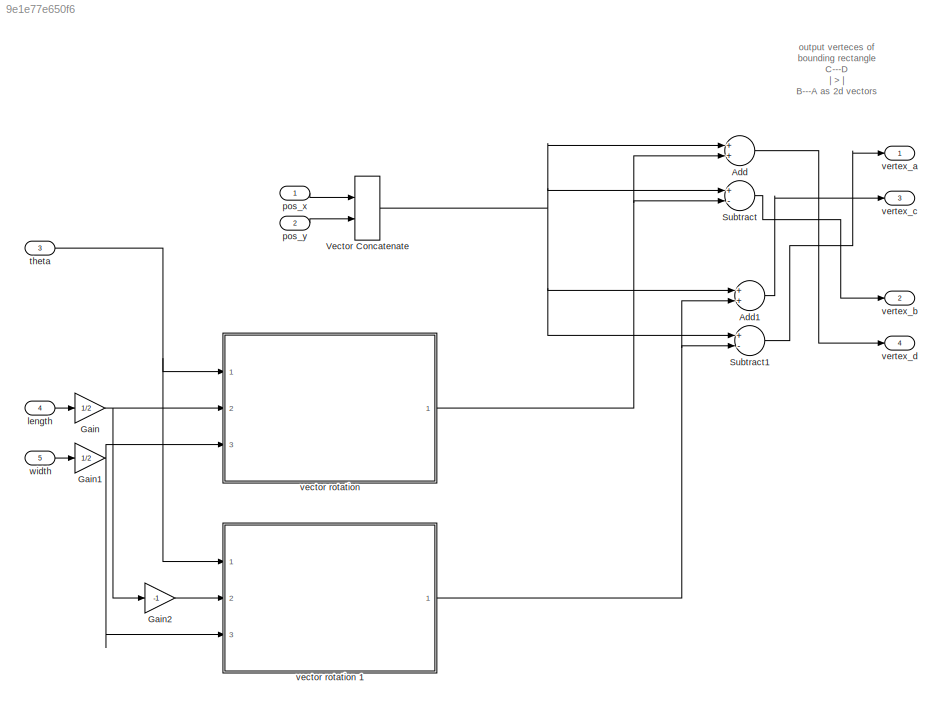
MODEL slx_9e1e77e650f6
KIND model
CONFIG AbsTol = auto
CONFIG EnableMultiTasking = off
CONFIG FixedStep = 0.01
CONFIG MaxStep = .001
CONFIG MinStep = auto
CONFIG RelTol = 1e-3
CONFIG SampleTimeConstraint = Unconstrained
CONFIG Solver = VariableStepAuto
CONFIG SolverName = VariableStepAuto
CONFIG StartTime = 0.0
CONFIG StopTime = 120
BLOCK [Sum] Add
  InputSameDT = off
  OutDataTypeStr = Inherit: Inherit via internal rule
  Ports = [2, 1]
  SaturateOnIntegerOverflow = off
BLOCK [Sum] Add1
  InputSameDT = off
  OutDataTypeStr = Inherit: Inherit via internal rule
  Ports = [2, 1]
  SaturateOnIntegerOverflow = off
BLOCK [Gain] Gain
  Gain = 1/2
  OutDataTypeStr = Inherit: Inherit via internal rule
  ParamDataTypeStr = Inherit: Inherit via internal rule
  SaturateOnIntegerOverflow = off
BLOCK [Gain] Gain1
  Gain = 1/2
  OutDataTypeStr = Inherit: Inherit via internal rule
  ParamDataTypeStr = Inherit: Inherit via internal rule
  SaturateOnIntegerOverflow = off
BLOCK [Gain] Gain2
  Gain = -1
  OutDataTypeStr = Inherit: Inherit via internal rule
  ParamDataTypeStr = Inherit: Inherit via internal rule
  SaturateOnIntegerOverflow = off
BLOCK [Sum] Subtract
  InputSameDT = off
  Inputs = +-
  OutDataTypeStr = Inherit: Inherit via internal rule
  Ports = [2, 1]
  SaturateOnIntegerOverflow = off
BLOCK [Sum] Subtract1
  InputSameDT = off
  Inputs = +-
  OutDataTypeStr = Inherit: Inherit via internal rule
  Ports = [2, 1]
  SaturateOnIntegerOverflow = off
BLOCK [Concatenate] Vector Concatenate
  Ports = [2, 1]
BLOCK [Inport] length
  IconDisplay = Port number
  OutDataTypeStr = double
  Port = 4
  PortDimensions = 1
  SamplingMode = Sample based
  SignalType = real
BLOCK [Inport] pos_x
  IconDisplay = Port number
  OutDataTypeStr = double
  PortDimensions = 1
  SampleTime = 0
  SamplingMode = Sample based
  SignalType = real
BLOCK [Inport] pos_y
  IconDisplay = Port number
  OutDataTypeStr = double
  Port = 2
  PortDimensions = 1
  SampleTime = 0
  SamplingMode = Sample based
  SignalType = real
BLOCK [Inport] theta
  IconDisplay = Port number
  OutDataTypeStr = double
  Port = 3
  PortDimensions = 1
  SampleTime = 0
  SamplingMode = Sample based
  SignalType = real
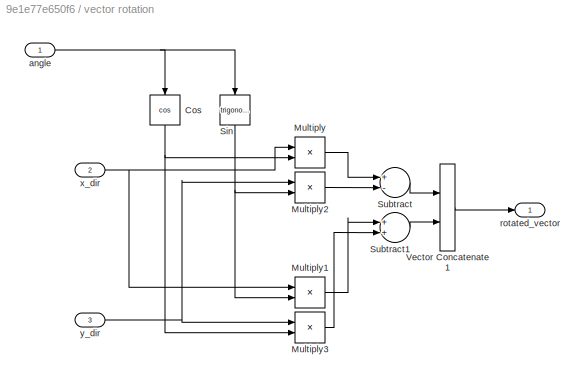
BLOCK [SubSystem] vector rotation 
  Ports = [3, 1]
  RequestExecContextInheritance = off
BLOCK [Trigonometry] vector rotation /Cos
  Operator = cos
  Ports = [1, 1]
BLOCK [Product] vector rotation /Multiply
  InputSameDT = off
  OutDataTypeStr = Inherit: Inherit via internal rule
  Ports = [2, 1]
  RndMeth = Floor
  SaturateOnIntegerOverflow = off
BLOCK [Product] vector rotation /Multiply1
  InputSameDT = off
  OutDataTypeStr = Inherit: Inherit via internal rule
  Ports = [2, 1]
  RndMeth = Floor
  SaturateOnIntegerOverflow = off
BLOCK [Product] vector rotation /Multiply2
  InputSameDT = off
  OutDataTypeStr = Inherit: Inherit via internal rule
  Ports = [2, 1]
  RndMeth = Floor
  SaturateOnIntegerOverflow = off
BLOCK [Product] vector rotation /Multiply3
  InputSameDT = off
  OutDataTypeStr = Inherit: Inherit via internal rule
  Ports = [2, 1]
  RndMeth = Floor
  SaturateOnIntegerOverflow = off
BLOCK [Trigonometry] vector rotation /Sin
  Ports = [1, 1]
BLOCK [Sum] vector rotation /Subtract
  InputSameDT = off
  Inputs = +-
  OutDataTypeStr = Inherit: Inherit via internal rule
  Ports = [2, 1]
  SaturateOnIntegerOverflow = off
BLOCK [Sum] vector rotation /Subtract1
  InputSameDT = off
  OutDataTypeStr = Inherit: Inherit via internal rule
  Ports = [2, 1]
  SaturateOnIntegerOverflow = off
BLOCK [Concatenate] vector rotation /Vector Concatenate1
  Ports = [2, 1]
BLOCK [Inport] vector rotation /angle
  IconDisplay = Port number
BLOCK [Outport] vector rotation /rotated_vector 
  IconDisplay = Port number
BLOCK [Inport] vector rotation /x_dir
  IconDisplay = Port number
  Port = 2
BLOCK [Inport] vector rotation /y_dir
  IconDisplay = Port number
  Port = 3
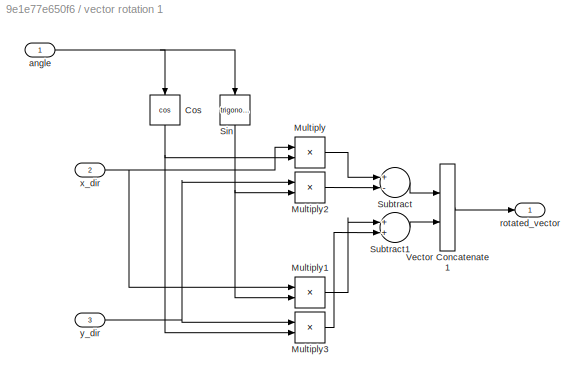
BLOCK [SubSystem] vector rotation 1
  Ports = [3, 1]
  RequestExecContextInheritance = off
BLOCK [Trigonometry] vector rotation 1/Cos
  Operator = cos
  Ports = [1, 1]
BLOCK [Product] vector rotation 1/Multiply
  InputSameDT = off
  OutDataTypeStr = Inherit: Inherit via internal rule
  Ports = [2, 1]
  RndMeth = Floor
  SaturateOnIntegerOverflow = off
BLOCK [Product] vector rotation 1/Multiply1
  InputSameDT = off
  OutDataTypeStr = Inherit: Inherit via internal rule
  Ports = [2, 1]
  RndMeth = Floor
  SaturateOnIntegerOverflow = off
BLOCK [Product] vector rotation 1/Multiply2
  InputSameDT = off
  OutDataTypeStr = Inherit: Inherit via internal rule
  Ports = [2, 1]
  RndMeth = Floor
  SaturateOnIntegerOverflow = off
BLOCK [Product] vector rotation 1/Multiply3
  InputSameDT = off
  OutDataTypeStr = Inherit: Inherit via internal rule
  Ports = [2, 1]
  RndMeth = Floor
  SaturateOnIntegerOverflow = off
BLOCK [Trigonometry] vector rotation 1/Sin
  Ports = [1, 1]
BLOCK [Sum] vector rotation 1/Subtract
  InputSameDT = off
  Inputs = +-
  OutDataTypeStr = Inherit: Inherit via internal rule
  Ports = [2, 1]
  SaturateOnIntegerOverflow = off
BLOCK [Sum] vector rotation 1/Subtract1
  InputSameDT = off
  OutDataTypeStr = Inherit: Inherit via internal rule
  Ports = [2, 1]
  SaturateOnIntegerOverflow = off
BLOCK [Concatenate] vector rotation 1/Vector Concatenate1
  Ports = [2, 1]
BLOCK [Inport] vector rotation 1/angle
  IconDisplay = Port number
BLOCK [Outport] vector rotation 1/rotated_vector 
  IconDisplay = Port number
BLOCK [Inport] vector rotation 1/x_dir
  IconDisplay = Port number
  Port = 2
BLOCK [Inport] vector rotation 1/y_dir
  IconDisplay = Port number
  Port = 3
BLOCK [Outport] vertex_a
  IconDisplay = Port number
  OutDataTypeStr = double
  PortDimensions = 2
  SampleTime = 0
  SamplingMode = Sample based
  SignalType = real
BLOCK [Outport] vertex_b
  IconDisplay = Port number
  OutDataTypeStr = double
  Port = 2
  PortDimensions = 2
  SampleTime = 0
  SamplingMode = Sample based
  SignalType = real
BLOCK [Outport] vertex_c
  IconDisplay = Port number
  OutDataTypeStr = double
  Port = 3
  PortDimensions = 2
  SampleTime = 0
  SamplingMode = Sample based
  SignalType = real
BLOCK [Outport] vertex_d
  IconDisplay = Port number
  OutDataTypeStr = double
  Port = 4
  PortDimensions = 2
  SampleTime = 0
  SamplingMode = Sample based
  SignalType = real
BLOCK [Inport] width
  IconDisplay = Port number
  OutDataTypeStr = double
  Port = 5
  PortDimensions = 1
  SamplingMode = Sample based
  SignalType = real
ANNOTATION (root): output verteces of bounding rectangle C---D | > | B---A as 2d vectors
LINE Add1:1 -> vertex_c:1
LINE Add:1 -> vertex_d:1
NET Gain1:1 -> vector rotation 1:3, vector rotation :3
LINE Gain2:1 -> vector rotation 1:2
NET Gain:1 -> Gain2:1, vector rotation :2
LINE Subtract1:1 -> vertex_a:1
LINE Subtract:1 -> vertex_b:1
NET Vector Concatenate:1 -> Add1:1, Add:1, Subtract1:1, Subtract:1
LINE length:1 -> Gain:1
LINE pos_x:1 -> Vector Concatenate:1
LINE pos_y:1 -> Vector Concatenate:2
NET theta:1 -> vector rotation 1:1, vector rotation :1
NET vector rotation /Cos:1 -> vector rotation /Multiply3:2, vector rotation /Multiply:2
LINE vector rotation /Multiply1:1 -> vector rotation /Subtract1:1
LINE vector rotation /Multiply2:1 -> vector rotation /Subtract:2
LINE vector rotation /Multiply3:1 -> vector rotation /Subtract1:2
LINE vector rotation /Multiply:1 -> vector rotation /Subtract:1
NET vector rotation /Sin:1 -> vector rotation /Multiply1:2, vector rotation /Multiply2:2
LINE vector rotation /Subtract1:1 -> vector rotation /Vector Concatenate1:2
LINE vector rotation /Subtract:1 -> vector rotation /Vector Concatenate1:1
LINE vector rotation /Vector Concatenate1:1 -> vector rotation /rotated_vector :1
NET vector rotation /angle:1 -> vector rotation /Cos:1, vector rotation /Sin:1
NET vector rotation /x_dir:1 -> vector rotation /Multiply1:1, vector rotation /Multiply:1
NET vector rotation /y_dir:1 -> vector rotation /Multiply2:1, vector rotation /Multiply3:1
NET vector rotation 1/Cos:1 -> vector rotation 1/Multiply3:2, vector rotation 1/Multiply:2
LINE vector rotation 1/Multiply1:1 -> vector rotation 1/Subtract1:1
LINE vector rotation 1/Multiply2:1 -> vector rotation 1/Subtract:2
LINE vector rotation 1/Multiply3:1 -> vector rotation 1/Subtract1:2
LINE vector rotation 1/Multiply:1 -> vector rotation 1/Subtract:1
NET vector rotation 1/Sin:1 -> vector rotation 1/Multiply1:2, vector rotation 1/Multiply2:2
LINE vector rotation 1/Subtract1:1 -> vector rotation 1/Vector Concatenate1:2
LINE vector rotation 1/Subtract:1 -> vector rotation 1/Vector Concatenate1:1
LINE vector rotation 1/Vector Concatenate1:1 -> vector rotation 1/rotated_vector :1
NET vector rotation 1/angle:1 -> vector rotation 1/Cos:1, vector rotation 1/Sin:1
NET vector rotation 1/x_dir:1 -> vector rotation 1/Multiply1:1, vector rotation 1/Multiply:1
NET vector rotation 1/y_dir:1 -> vector rotation 1/Multiply2:1, vector rotation 1/Multiply3:1
NET vector rotation 1:1 -> Add1:2, Subtract1:2
NET vector rotation :1 -> Add:2, Subtract:2
LINE width:1 -> Gain1:1
note: NET lines group one-source signal fan-out (src -> all destinations, sorted); 1:1 wires keep LINE
